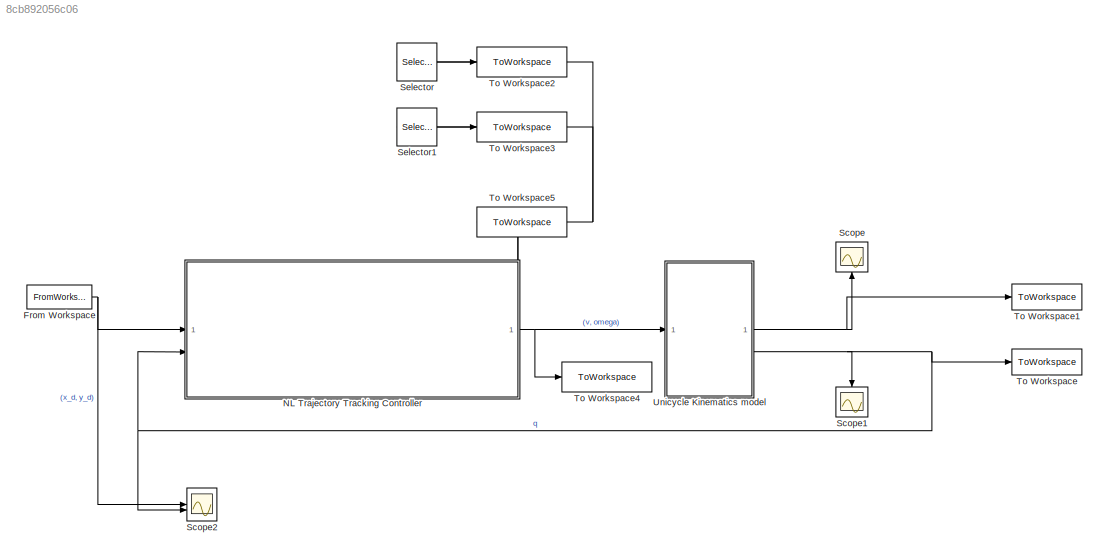
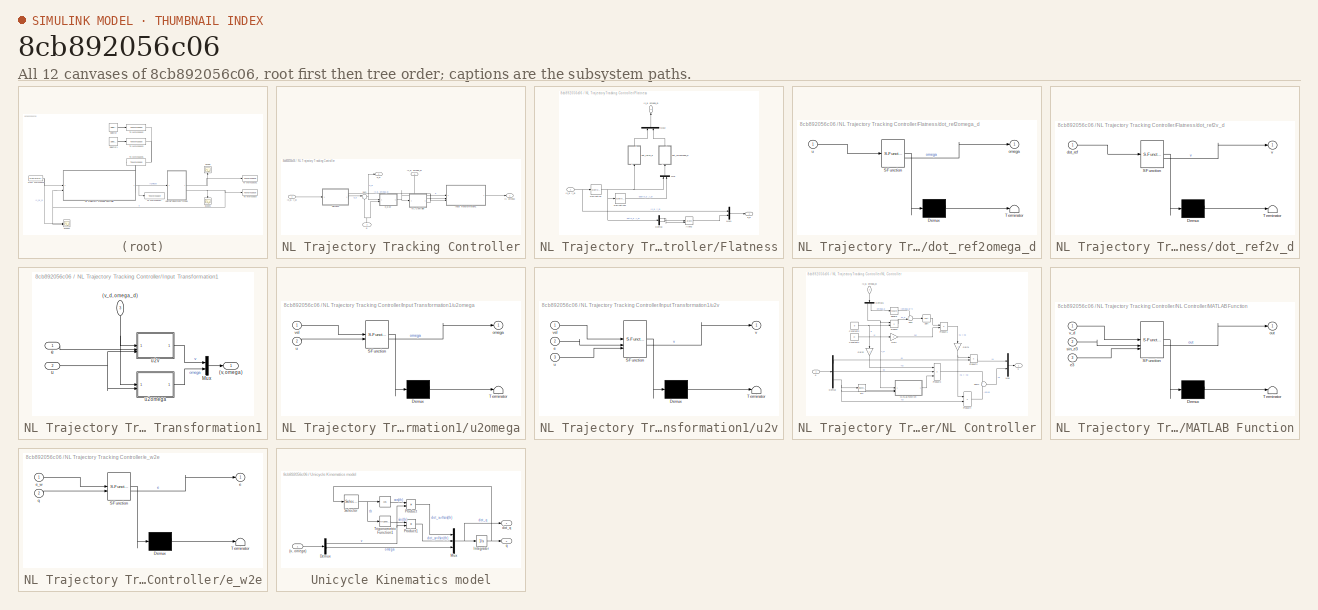
[diagram: thumbnail index - all 12 canvases of the model, root first then tree order]
MODEL slx_8cb892056c06
KIND model
CONFIG AbsTol = auto
CONFIG EnableMultiTasking = off
CONFIG FixedStep = Ts
CONFIG MaxStep = auto
CONFIG MinStep = auto
CONFIG RelTol = 1e-3
CONFIG SampleTimeConstraint = Unconstrained
CONFIG SolverName = FixedStepAuto
CONFIG StartTime = 0.0
CONFIG StopTime = 14.3996
BLOCK [FromWorkspace] From Workspace
  OutDataTypeStr = double
  SampleTime = -1
  VariableName = ref
BLOCK [SubSystem] NL Trajectory Tracking Controller
  PortSchema = {"entries":[{"content":{"sides":[{"content":{"connectorIds":["In1","In2"]},"type":"ConnectorPlacement.EquallySpacedRectSide","uuid":"cd877c46-8e15-457a-8f54-61807ea2ef45"},{"content":{"connectorIds":["Out1"],"side":"RIGHT"},"type":"ConnectorPlacement.EquallySpacedRectSide","uuid":"176f7bf5-d0a0-4212-99fa-33b58d1f7853"},{"content":{"connectorIds":["Out2","Out3"],"side":"TOP"},"type":"ConnectorPlace...<+259ch>
BLOCK [Outport] NL Trajectory Tracking Controller/(v, omega)
BLOCK [Outport] NL Trajectory Tracking Controller/(v_d, omega_d)
  Port = 3
BLOCK [Inport] NL Trajectory Tracking Controller/(x_d, y_d)
BLOCK [SubSystem] NL Trajectory Tracking Controller/Flatness
  PortSchema = {"entries":[{"content":{"sides":[{"content":{"connectorIds":["In1"]},"type":"ConnectorPlacement.EquallySpacedRectSide","uuid":"bc490c8e-5666-439b-9939-62bd84628b1f"},{"content":{"connectorIds":["Out1"],"side":"RIGHT"},"type":"ConnectorPlacement.EquallySpacedRectSide","uuid":"03a20fcc-2a82-4af2-a970-ff3426fda7d9"},{"content":{"connectorIds":["Out2"],"side":"TOP"},"type":"ConnectorPlacement.EquallyS...<+246ch>
BLOCK [Outport] NL Trajectory Tracking Controller/Flatness/(v_d, omega_d)
  NameLocation = right
  Port = 2
BLOCK [Inport] NL Trajectory Tracking Controller/Flatness/(x_d, y_d)
BLOCK [Trigonometry] NL Trajectory Tracking Controller/Flatness/Atan2
  Operator = atan2
BLOCK [Demux] NL Trajectory Tracking Controller/Flatness/Demux
  Outputs = 2
BLOCK [Derivative] NL Trajectory Tracking Controller/Flatness/Derivative
BLOCK [Derivative] NL Trajectory Tracking Controller/Flatness/Derivative1
BLOCK [Mux] NL Trajectory Tracking Controller/Flatness/Mux
  DisplayOption = bar
  Inputs = 2
  NameLocation = right
BLOCK [Mux] NL Trajectory Tracking Controller/Flatness/Mux1
  DisplayOption = bar
  Inputs = 2
BLOCK [Mux] NL Trajectory Tracking Controller/Flatness/Mux2
  DisplayOption = bar
  Inputs = 2
  NameLocation = right
BLOCK [SubSystem] NL Trajectory Tracking Controller/Flatness/dot_ref2omega_d
  ErrorFcn = Stateflow.Translate.translate
  NameLocation = right
  PermitHierarchicalResolution = ExplicitOnly
  SFBlockType = MATLAB Function
  TreatAsAtomicUnit = on
BLOCK [Demux] NL Trajectory Tracking Controller/Flatness/dot_ref2omega_d/ Demux 
  Outputs = 1
BLOCK [S-Function] NL Trajectory Tracking Controller/Flatness/dot_ref2omega_d/ SFunction 
  EnableBusSupport = off
  FunctionName = sf_sfun
  PortCounts = [1 2]
  SFcnIsStateOwnerBlock = off
  SFunctionDeploymentMode = off
  Tag = Stateflow S-Function 1
BLOCK [Terminator] NL Trajectory Tracking Controller/Flatness/dot_ref2omega_d/ Terminator 
BLOCK [Outport] NL Trajectory Tracking Controller/Flatness/dot_ref2omega_d/omega
BLOCK [Inport] NL Trajectory Tracking Controller/Flatness/dot_ref2omega_d/u
BLOCK [SubSystem] NL Trajectory Tracking Controller/Flatness/dot_ref2v_d
  ErrorFcn = Stateflow.Translate.translate
  NameLocation = right
  PermitHierarchicalResolution = ExplicitOnly
  SFBlockType = MATLAB Function
  TreatAsAtomicUnit = on
BLOCK [Demux] NL Trajectory Tracking Controller/Flatness/dot_ref2v_d/ Demux 
  Outputs = 1
BLOCK [S-Function] NL Trajectory Tracking Controller/Flatness/dot_ref2v_d/ SFunction 
  EnableBusSupport = off
  FunctionName = sf_sfun
  PortCounts = [1 2]
  SFcnIsStateOwnerBlock = off
  SFunctionDeploymentMode = off
  Tag = Stateflow S-Function 2
BLOCK [Terminator] NL Trajectory Tracking Controller/Flatness/dot_ref2v_d/ Terminator 
BLOCK [Inport] NL Trajectory Tracking Controller/Flatness/dot_ref2v_d/dot_ref
BLOCK [Outport] NL Trajectory Tracking Controller/Flatness/dot_ref2v_d/v
BLOCK [Outport] NL Trajectory Tracking Controller/Flatness/q_d
BLOCK [SubSystem] NL Trajectory Tracking Controller/Input Transformation1
  PortSchema = {"entries":[{"content":{"sides":[{"content":{"connectorIds":["In1","In2"]},"type":"ConnectorPlacement.EquallySpacedRectSide","uuid":"4cbebdc1-8913-4bb0-9524-d854c819f784"},{"content":{"connectorIds":["Out1"],"side":"RIGHT"},"type":"ConnectorPlacement.EquallySpacedRectSide","uuid":"178a2b4a-0c33-47f3-8be3-bd76dfc47961"},{"content":{"connectorIds":["In3"],"side":"TOP"},"type":"ConnectorPlacement.Equ...<+251ch>
BLOCK [Outport] NL Trajectory Tracking Controller/Input Transformation1/(v, omega)
BLOCK [Inport] NL Trajectory Tracking Controller/Input Transformation1/(v_d, omega_d)
  NameLocation = left
  Port = 3
BLOCK [Mux] NL Trajectory Tracking Controller/Input Transformation1/Mux
  DisplayOption = bar
  Inputs = 2
BLOCK [Inport] NL Trajectory Tracking Controller/Input Transformation1/e
BLOCK [Inport] NL Trajectory Tracking Controller/Input Transformation1/u
  Port = 2
BLOCK [SubSystem] NL Trajectory Tracking Controller/Input Transformation1/u2omega
  ErrorFcn = Stateflow.Translate.translate
  PermitHierarchicalResolution = ExplicitOnly
  SFBlockType = MATLAB Function
  TreatAsAtomicUnit = on
BLOCK [Demux] NL Trajectory Tracking Controller/Input Transformation1/u2omega/ Demux 
  Outputs = 1
BLOCK [S-Function] NL Trajectory Tracking Controller/Input Transformation1/u2omega/ SFunction 
  EnableBusSupport = off
  FunctionName = sf_sfun
  PortCounts = [2 2]
  SFcnIsStateOwnerBlock = off
  SFunctionDeploymentMode = off
  Tag = Stateflow S-Function 6
BLOCK [Terminator] NL Trajectory Tracking Controller/Input Transformation1/u2omega/ Terminator 
BLOCK [Outport] NL Trajectory Tracking Controller/Input Transformation1/u2omega/omega
BLOCK [Inport] NL Trajectory Tracking Controller/Input Transformation1/u2omega/u
  Port = 2
BLOCK [Inport] NL Trajectory Tracking Controller/Input Transformation1/u2omega/vel
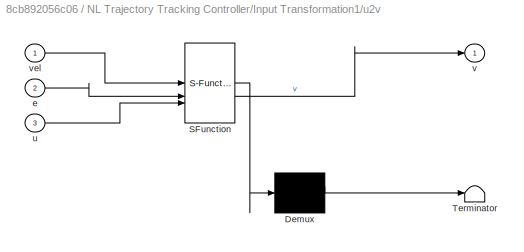
BLOCK [SubSystem] NL Trajectory Tracking Controller/Input Transformation1/u2v
  ErrorFcn = Stateflow.Translate.translate
  PermitHierarchicalResolution = ExplicitOnly
  SFBlockType = MATLAB Function
  TreatAsAtomicUnit = on
BLOCK [Demux] NL Trajectory Tracking Controller/Input Transformation1/u2v/ Demux 
  Outputs = 1
BLOCK [S-Function] NL Trajectory Tracking Controller/Input Transformation1/u2v/ SFunction 
  EnableBusSupport = off
  FunctionName = sf_sfun
  PortCounts = [3 2]
  SFcnIsStateOwnerBlock = off
  SFunctionDeploymentMode = off
  Tag = Stateflow S-Function 7
BLOCK [Terminator] NL Trajectory Tracking Controller/Input Transformation1/u2v/ Terminator 
BLOCK [Inport] NL Trajectory Tracking Controller/Input Transformation1/u2v/e
  Port = 2
BLOCK [Inport] NL Trajectory Tracking Controller/Input Transformation1/u2v/u
  Port = 3
BLOCK [Outport] NL Trajectory Tracking Controller/Input Transformation1/u2v/v
BLOCK [Inport] NL Trajectory Tracking Controller/Input Transformation1/u2v/vel
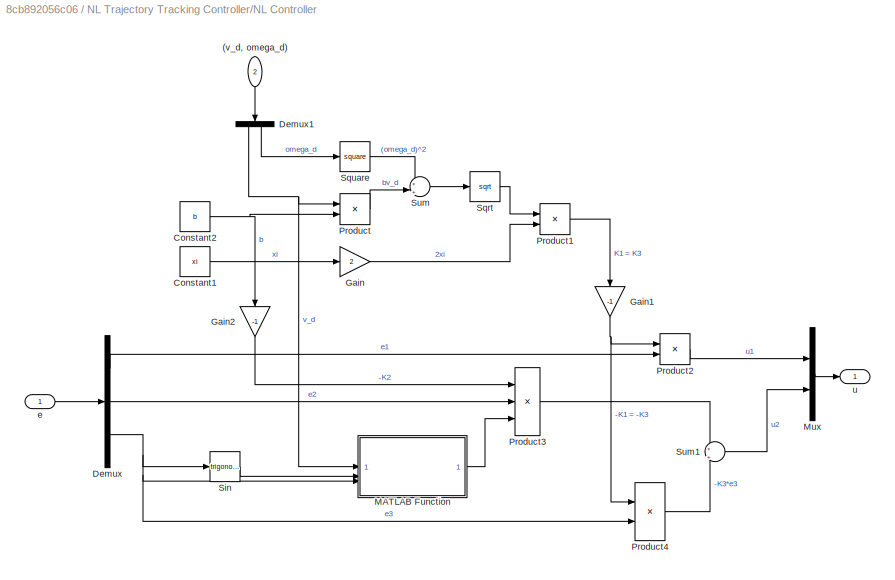
BLOCK [SubSystem] NL Trajectory Tracking Controller/NL Controller
  PortSchema = {"entries":[{"content":{"sides":[{"content":{"connectorIds":["In1"]},"type":"ConnectorPlacement.EquallySpacedRectSide","uuid":"111a75b0-1720-417b-bb3b-4eef3b94ce3e"},{"content":{"connectorIds":["Out1"],"side":"RIGHT"},"type":"ConnectorPlacement.EquallySpacedRectSide","uuid":"fd08faf2-16f9-4b1a-8555-2743d2eb322e"},{"content":{"connectorIds":["In2"],"side":"TOP"},"type":"ConnectorPlacement.EquallySp...<+245ch>
BLOCK [Inport] NL Trajectory Tracking Controller/NL Controller/(v_d, omega_d)
  NameLocation = left
  Port = 2
BLOCK [Constant] NL Trajectory Tracking Controller/NL Controller/Constant1
  Value = xi
BLOCK [Constant] NL Trajectory Tracking Controller/NL Controller/Constant2
  Value = b
BLOCK [Demux] NL Trajectory Tracking Controller/NL Controller/Demux
  Outputs = 3
BLOCK [Demux] NL Trajectory Tracking Controller/NL Controller/Demux1
  NameLocation = left
  Outputs = 2
BLOCK [Gain] NL Trajectory Tracking Controller/NL Controller/Gain
  Gain = 2
BLOCK [Gain] NL Trajectory Tracking Controller/NL Controller/Gain1
  Gain = -1
  NameLocation = left
BLOCK [Gain] NL Trajectory Tracking Controller/NL Controller/Gain2
  Gain = -1
  NameLocation = left
BLOCK [SubSystem] NL Trajectory Tracking Controller/NL Controller/MATLAB Function
  ErrorFcn = Stateflow.Translate.translate
  PermitHierarchicalResolution = ExplicitOnly
  SFBlockType = MATLAB Function
  TreatAsAtomicUnit = on
BLOCK [Demux] NL Trajectory Tracking Controller/NL Controller/MATLAB Function/ Demux 
  Outputs = 1
BLOCK [S-Function] NL Trajectory Tracking Controller/NL Controller/MATLAB Function/ SFunction 
  EnableBusSupport = off
  FunctionName = sf_sfun
  PortCounts = [3 2]
  SFcnIsStateOwnerBlock = off
  SFunctionDeploymentMode = off
  Tag = Stateflow S-Function 11
BLOCK [Terminator] NL Trajectory Tracking Controller/NL Controller/MATLAB Function/ Terminator 
BLOCK [Inport] NL Trajectory Tracking Controller/NL Controller/MATLAB Function/e3
  Port = 3
BLOCK [Outport] NL Trajectory Tracking Controller/NL Controller/MATLAB Function/out
BLOCK [Inport] NL Trajectory Tracking Controller/NL Controller/MATLAB Function/sin_e3
  Port = 2
BLOCK [Inport] NL Trajectory Tracking Controller/NL Controller/MATLAB Function/v_d
BLOCK [Mux] NL Trajectory Tracking Controller/NL Controller/Mux
  DisplayOption = bar
  Inputs = 2
BLOCK [Product] NL Trajectory Tracking Controller/NL Controller/Product
BLOCK [Product] NL Trajectory Tracking Controller/NL Controller/Product1
BLOCK [Product] NL Trajectory Tracking Controller/NL Controller/Product2
BLOCK [Product] NL Trajectory Tracking Controller/NL Controller/Product3
  Inputs = 3
BLOCK [Product] NL Trajectory Tracking Controller/NL Controller/Product4
BLOCK [Trigonometry] NL Trajectory Tracking Controller/NL Controller/Sin
BLOCK [Sqrt] NL Trajectory Tracking Controller/NL Controller/Sqrt
BLOCK [Math] NL Trajectory Tracking Controller/NL Controller/Square
  Operator = square
BLOCK [Sum] NL Trajectory Tracking Controller/NL Controller/Sum
  Inputs = +|+
BLOCK [Sum] NL Trajectory Tracking Controller/NL Controller/Sum1
  Inputs = +|+
BLOCK [Inport] NL Trajectory Tracking Controller/NL Controller/e
BLOCK [Outport] NL Trajectory Tracking Controller/NL Controller/u
BLOCK [Sum] NL Trajectory Tracking Controller/Sum
  Inputs = |+-
BLOCK [Outport] NL Trajectory Tracking Controller/e_w
  Port = 2
BLOCK [SubSystem] NL Trajectory Tracking Controller/e_w2e
  ErrorFcn = Stateflow.Translate.translate
  PermitHierarchicalResolution = ExplicitOnly
  SFBlockType = MATLAB Function
  TreatAsAtomicUnit = on
BLOCK [Demux] NL Trajectory Tracking Controller/e_w2e/ Demux 
  Outputs = 1
BLOCK [S-Function] NL Trajectory Tracking Controller/e_w2e/ SFunction 
  EnableBusSupport = off
  FunctionName = sf_sfun
  PortCounts = [2 2]
  SFcnIsStateOwnerBlock = off
  SFunctionDeploymentMode = off
  Tag = Stateflow S-Function 3
BLOCK [Terminator] NL Trajectory Tracking Controller/e_w2e/ Terminator 
BLOCK [Outport] NL Trajectory Tracking Controller/e_w2e/e
BLOCK [Inport] NL Trajectory Tracking Controller/e_w2e/e_w
BLOCK [Inport] NL Trajectory Tracking Controller/e_w2e/q
  Port = 2
BLOCK [Inport] NL Trajectory Tracking Controller/q
  Port = 2
BLOCK [Scope] Scope
  ActiveDisplayYMaximum = 630.9359
  ActiveDisplayYMinimum = -1203.295
  DataLoggingVariableName = ScopeData4
  Floating = off
  GraphicalSettings = {"GraphicalSettings":{"LegacySettings":true,"Style":{"AxesScalingProperties":{"AlignXAxis":"Center","AlignYAxis":"Center","AutoScaleXAxisLimits":true,"AxesScaling":"Manual","AxesScalingNumUpdates":10,"ScaleAxesLimitsAtStop":false,"XAxisDataRange":100,"YAxisDataRange":80},"Style":{"AxesColor":"[0.0705882352941176 0.0705882352941176 0.0705882352941176]","BackgroundColor":"[0.129411764705882 0.129411...<+803ch>
  LayoutDimensionsString = [1 1]
  MultipleDisplayCache = [{"MaxYLimMag":10,"MaxYLimReal":630.9359,"MinYLimMag":0,"MinYLimReal":-1203.295,"PlotAsMagnitudePhase":false,"ShowGrid":true,"ShowLegend":false,"Title":"%<SignalLabel>","YLabel":""}]
  NameLocation = right
  NumInputPorts = 1
  WasSavedAsWebScope = on
  WindowPosition = [47 38 1874 1011]
BLOCK [Scope] Scope1
  ActiveDisplayYMaximum = 317.52399250471404
  ActiveDisplayYMinimum = -65.207642092288552
  Floating = off
  GraphicalSettings = {"Style":{"BackgroundColor":[0.12156862745098039,0.12156862745098039,0.12156862745098039],"AxesColor":[0.06666666666666667,0.06666666666666667,0.06666666666666667],"LabelsColor":[0.8509803921568627,0.8509803921568627,0.8509803921568627],"PreserveColors":false,"Visible":[true,true,true],"LineStyle":["-","-","-"],"LineWidth":[1.5,1.5,1.5],"BarWidth":[0.9,0.9,0.9],"LineColor":[[1,0.9098039215686274,0...<+2325ch>
  LayoutDimensionsString = [1 1]
  MultipleDisplayCache = [{"MaxYLimMag":1518.8667,"MaxYLimReal":317.52399250471404,"MinYLimMag":0,"MinYLimReal":-65.207642092288552,"PlotAsMagnitudePhase":false,"ShowGrid":true,"ShowLegend":true,"Title":"%<SignalLabel>","YLabel":""}]
  NameLocation = left
  NumInputPorts = 1
  ScopeFrameLocation = window
  ShowLegend = on
  WasSavedAsWebScope = on
  WindowPosition = [1.000000,49.000000,1536.000000,793.000000,]
BLOCK [Scope] Scope2
  ActiveDisplayYMaximum = 287.08732573187319
  ActiveDisplayYMinimum = -33.7891134683469
  DataLoggingVariableName = ScopeData2
  DisplayFullPath = on
  Floating = off
  GraphicalSettings = {"Style":{"BackgroundColor":[0.12549019607843137,0.12549019607843137,0.12549019607843137],"AxesColor":[0.06666666666666667,0.06666666666666667,0.06666666666666667],"LabelsColor":[0.8509803921568627,0.8509803921568627,0.8509803921568627],"PreserveColors":false,"Visible":[true,true,true,true,true],"LineStyle":["-","-","-","-","-"],"LineWidth":[1.5,1.5,1.5,1.5,1.5],"BarWidth":[0.9,0.9,0.9,0.9,0.9],"L...<+2532ch>
  LayoutDimensionsString = [1 1]
  MultipleDisplayCache = [{"MaxYLimMag":287.08732573187319,"MaxYLimReal":287.08732573187319,"MinYLimMag":0,"MinYLimReal":-33.7891134683469,"PlotAsMagnitudePhase":false,"ShowGrid":true,"ShowLegend":true,"Title":"%<SignalLabel>","YLabel":""}]
  NumInputPorts = 2
  OpenAtSimulationStart = on
  ScopeFrameLocation = window
  ShowLegend = on
  WasSavedAsWebScope = on
  WindowPosition = [1.000000,49.000000,1536.000000,793.000000,]
BLOCK [Selector] Selector
  IndexOptions = Index vector (dialog)
  Indices = [1]
  InputPortWidth = 3
  OutputSizes = 1
BLOCK [Selector] Selector1
  IndexOptions = Index vector (dialog)
  Indices = [2]
  InputPortWidth = 3
  OutputSizes = 1
BLOCK [ToWorkspace] To Workspace
  FixptAsFi = on
  MaxDataPoints = inf
  SampleTime = -1
  SaveFormat = Timeseries
  VariableName = q
BLOCK [ToWorkspace] To Workspace1
  FixptAsFi = on
  MaxDataPoints = inf
  SampleTime = -1
  SaveFormat = Timeseries
  VariableName = qdot
BLOCK [ToWorkspace] To Workspace2
  FixptAsFi = on
  MaxDataPoints = inf
  SampleTime = -1
  SaveFormat = Timeseries
  VariableName = e_x
BLOCK [ToWorkspace] To Workspace3
  FixptAsFi = on
  MaxDataPoints = inf
  SampleTime = -1
  SaveFormat = Timeseries
  VariableName = e_y
BLOCK [ToWorkspace] To Workspace4
  FixptAsFi = on
  MaxDataPoints = inf
  SampleTime = -1
  SaveFormat = Timeseries
  VariableName = vw
BLOCK [ToWorkspace] To Workspace5
  FixptAsFi = on
  MaxDataPoints = inf
  SampleTime = -1
  SaveFormat = Timeseries
  VariableName = vd_wd
BLOCK [SubSystem] Unicycle Kinematics model
BLOCK [Trigonometry] Unicycle Kinematics model/ 
  Operator = cos
BLOCK [Inport] Unicycle Kinematics model/(v, omega)
BLOCK [Demux] Unicycle Kinematics model/Demux
  Outputs = 2
BLOCK [Integrator] Unicycle Kinematics model/Integrator
  InitialCondition = [x0; y0; theta0]
BLOCK [Mux] Unicycle Kinematics model/Mux
  DisplayOption = bar
  Inputs = 3
BLOCK [Product] Unicycle Kinematics model/Product
BLOCK [Product] Unicycle Kinematics model/Product1
BLOCK [Selector] Unicycle Kinematics model/Selector
  IndexOptions = Index vector (dialog)
  Indices = [3]
  InputPortWidth = 3
  OutputSizes = 1
BLOCK [Trigonometry] Unicycle Kinematics model/Trigonometric Function1
BLOCK [Outport] Unicycle Kinematics model/dot_q
BLOCK [Outport] Unicycle Kinematics model/q
  Port = 2
NET From Workspace:1 -> NL Trajectory Tracking Controller:1, Scope2:1
LINE NL Trajectory Tracking Controller/(x_d, y_d):1 -> NL Trajectory Tracking Controller/Flatness:1
NET NL Trajectory Tracking Controller/Flatness/(x_d, y_d):1 -> NL Trajectory Tracking Controller/Flatness/Derivative:1, NL Trajectory Tracking Controller/Flatness/Mux1:1
LINE NL Trajectory Tracking Controller/Flatness/Atan2:1 -> NL Trajectory Tracking Controller/Flatness/Mux1:2
LINE NL Trajectory Tracking Controller/Flatness/Demux:1 -> NL Trajectory Tracking Controller/Flatness/Atan2:2
LINE NL Trajectory Tracking Controller/Flatness/Demux:2 -> NL Trajectory Tracking Controller/Flatness/Atan2:1
LINE NL Trajectory Tracking Controller/Flatness/Derivative1:1 -> NL Trajectory Tracking Controller/Flatness/Mux:2
NET NL Trajectory Tracking Controller/Flatness/Derivative:1 -> NL Trajectory Tracking Controller/Flatness/Demux:1, NL Trajectory Tracking Controller/Flatness/Derivative1:1, NL Trajectory Tracking Controller/Flatness/Mux:1, NL Trajectory Tracking Controller/Flatness/dot_ref2v_d:1
LINE NL Trajectory Tracking Controller/Flatness/Mux1:1 -> NL Trajectory Tracking Controller/Flatness/q_d:1
LINE NL Trajectory Tracking Controller/Flatness/Mux2:1 -> NL Trajectory Tracking Controller/Flatness/(v_d, omega_d):1
LINE NL Trajectory Tracking Controller/Flatness/Mux:1 -> NL Trajectory Tracking Controller/Flatness/dot_ref2omega_d:1
LINE NL Trajectory Tracking Controller/Flatness/dot_ref2omega_d:1 -> NL Trajectory Tracking Controller/Flatness/Mux2:2
LINE NL Trajectory Tracking Controller/Flatness/dot_ref2v_d:1 -> NL Trajectory Tracking Controller/Flatness/Mux2:1
LINE NL Trajectory Tracking Controller/Flatness:1 -> NL Trajectory Tracking Controller/Sum:1
NET NL Trajectory Tracking Controller/Flatness:2 -> NL Trajectory Tracking Controller/(v_d, omega_d):1, NL Trajectory Tracking Controller/Input Transformation1:3, NL Trajectory Tracking Controller/NL Controller:2
NET NL Trajectory Tracking Controller/Input Transformation1/(v_d, omega_d):1 -> NL Trajectory Tracking Controller/Input Transformation1/u2omega:1, NL Trajectory Tracking Controller/Input Transformation1/u2v:1
LINE NL Trajectory Tracking Controller/Input Transformation1/Mux:1 -> NL Trajectory Tracking Controller/Input Transformation1/(v, omega):1
LINE NL Trajectory Tracking Controller/Input Transformation1/e:1 -> NL Trajectory Tracking Controller/Input Transformation1/u2v:2
LINE NL Trajectory Tracking Controller/Input Transformation1/u2omega:1 -> NL Trajectory Tracking Controller/Input Transformation1/Mux:2
LINE NL Trajectory Tracking Controller/Input Transformation1/u2v:1 -> NL Trajectory Tracking Controller/Input Transformation1/Mux:1
NET NL Trajectory Tracking Controller/Input Transformation1/u:1 -> NL Trajectory Tracking Controller/Input Transformation1/u2omega:2, NL Trajectory Tracking Controller/Input Transformation1/u2v:3
LINE NL Trajectory Tracking Controller/Input Transformation1:1 -> NL Trajectory Tracking Controller/(v, omega):1
LINE NL Trajectory Tracking Controller/NL Controller/(v_d, omega_d):1 -> NL Trajectory Tracking Controller/NL Controller/Demux1:1
LINE NL Trajectory Tracking Controller/NL Controller/Constant1:1 -> NL Trajectory Tracking Controller/NL Controller/Gain:1
NET NL Trajectory Tracking Controller/NL Controller/Constant2:1 -> NL Trajectory Tracking Controller/NL Controller/Gain2:1, NL Trajectory Tracking Controller/NL Controller/Product:2
NET NL Trajectory Tracking Controller/NL Controller/Demux1:1 -> NL Trajectory Tracking Controller/NL Controller/MATLAB Function:1, NL Trajectory Tracking Controller/NL Controller/Product:1
LINE NL Trajectory Tracking Controller/NL Controller/Demux1:2 -> NL Trajectory Tracking Controller/NL Controller/Square:1
LINE NL Trajectory Tracking Controller/NL Controller/Demux:1 -> NL Trajectory Tracking Controller/NL Controller/Product2:2
LINE NL Trajectory Tracking Controller/NL Controller/Demux:2 -> NL Trajectory Tracking Controller/NL Controller/Product3:2
NET NL Trajectory Tracking Controller/NL Controller/Demux:3 -> NL Trajectory Tracking Controller/NL Controller/MATLAB Function:3, NL Trajectory Tracking Controller/NL Controller/Product4:2, NL Trajectory Tracking Controller/NL Controller/Sin:1
NET NL Trajectory Tracking Controller/NL Controller/Gain1:1 -> NL Trajectory Tracking Controller/NL Controller/Product2:1, NL Trajectory Tracking Controller/NL Controller/Product4:1
LINE NL Trajectory Tracking Controller/NL Controller/Gain2:1 -> NL Trajectory Tracking Controller/NL Controller/Product3:1
LINE NL Trajectory Tracking Controller/NL Controller/Gain:1 -> NL Trajectory Tracking Controller/NL Controller/Product1:2
LINE NL Trajectory Tracking Controller/NL Controller/MATLAB Function:1 -> NL Trajectory Tracking Controller/NL Controller/Product3:3
LINE NL Trajectory Tracking Controller/NL Controller/Mux:1 -> NL Trajectory Tracking Controller/NL Controller/u:1
LINE NL Trajectory Tracking Controller/NL Controller/Product1:1 -> NL Trajectory Tracking Controller/NL Controller/Gain1:1
LINE NL Trajectory Tracking Controller/NL Controller/Product2:1 -> NL Trajectory Tracking Controller/NL Controller/Mux:1
LINE NL Trajectory Tracking Controller/NL Controller/Product3:1 -> NL Trajectory Tracking Controller/NL Controller/Sum1:1
LINE NL Trajectory Tracking Controller/NL Controller/Product4:1 -> NL Trajectory Tracking Controller/NL Controller/Sum1:2
LINE NL Trajectory Tracking Controller/NL Controller/Product:1 -> NL Trajectory Tracking Controller/NL Controller/Sum:2
LINE NL Trajectory Tracking Controller/NL Controller/Sin:1 -> NL Trajectory Tracking Controller/NL Controller/MATLAB Function:2
LINE NL Trajectory Tracking Controller/NL Controller/Sqrt:1 -> NL Trajectory Tracking Controller/NL Controller/Product1:1
LINE NL Trajectory Tracking Controller/NL Controller/Square:1 -> NL Trajectory Tracking Controller/NL Controller/Sum:1
LINE NL Trajectory Tracking Controller/NL Controller/Sum1:1 -> NL Trajectory Tracking Controller/NL Controller/Mux:2
LINE NL Trajectory Tracking Controller/NL Controller/Sum:1 -> NL Trajectory Tracking Controller/NL Controller/Sqrt:1
LINE NL Trajectory Tracking Controller/NL Controller/e:1 -> NL Trajectory Tracking Controller/NL Controller/Demux:1
LINE NL Trajectory Tracking Controller/NL Controller:1 -> NL Trajectory Tracking Controller/Input Transformation1:2
NET NL Trajectory Tracking Controller/Sum:1 -> NL Trajectory Tracking Controller/e_w2e:1, NL Trajectory Tracking Controller/e_w:1
NET NL Trajectory Tracking Controller/e_w2e:1 -> NL Trajectory Tracking Controller/Input Transformation1:1, NL Trajectory Tracking Controller/NL Controller:1
NET NL Trajectory Tracking Controller/q:1 -> NL Trajectory Tracking Controller/Sum:2, NL Trajectory Tracking Controller/e_w2e:2
NET NL Trajectory Tracking Controller:1 -> To Workspace4:1, Unicycle Kinematics model:1
NET NL Trajectory Tracking Controller:2 -> Selector1:1, Selector:1
LINE NL Trajectory Tracking Controller:3 -> To Workspace5:1
LINE Selector1:1 -> To Workspace3:1
LINE Selector:1 -> To Workspace2:1
LINE Unicycle Kinematics model/ :1 -> Unicycle Kinematics model/Product:1
LINE Unicycle Kinematics model/(v, omega):1 -> Unicycle Kinematics model/Demux:1
NET Unicycle Kinematics model/Demux:1 -> Unicycle Kinematics model/Product1:2, Unicycle Kinematics model/Product:2
LINE Unicycle Kinematics model/Demux:2 -> Unicycle Kinematics model/Mux:3
NET Unicycle Kinematics model/Integrator:1 -> Unicycle Kinematics model/Selector:1, Unicycle Kinematics model/q:1
NET Unicycle Kinematics model/Mux:1 -> Unicycle Kinematics model/Integrator:1, Unicycle Kinematics model/dot_q:1
LINE Unicycle Kinematics model/Product1:1 -> Unicycle Kinematics model/Mux:2
LINE Unicycle Kinematics model/Product:1 -> Unicycle Kinematics model/Mux:1
NET Unicycle Kinematics model/Selector:1 -> Unicycle Kinematics model/ :1, Unicycle Kinematics model/Trigonometric Function1:1
LINE Unicycle Kinematics model/Trigonometric Function1:1 -> Unicycle Kinematics model/Product1:1
NET Unicycle Kinematics model:1 -> Scope:1, To Workspace1:1
NET Unicycle Kinematics model:2 -> NL Trajectory Tracking Controller:2, Scope1:1, Scope2:2, To Workspace:1
note: NET lines group one-source signal fan-out (src -> all destinations, sorted); 1:1 wires keep LINE
CHART NL Trajectory Tracking Controller/Flatness/dot_ref2v_d states=1 transitions=1
  STATE_LABEL 'eML_blk_kernel()'
  STATE_LABEL 'SCRIPT:\nfunction v = fcn(dot_ref)\n    dot_x = dot_ref(1);\n    dot_y = dot_ref(2);\n\n    v = sqrt(dot_x^2 + dot_y^2);\n\n    v_min = 1e-6;\n    if ~isfinite(v) || v < v_min\n        v = v_min;\n    end\nend\n'
CHART NL Trajectory Tracking Controller/e_w2e states=1 transitions=1
  STATE_LABEL 'eML_blk_kernel()'
  STATE_LABEL 'SCRIPT:\nfunction e = fcn(e_w, q)\n    theta = q(3);\n\n    R = [cos(theta) sin(theta) 0; \n        -sin(theta) cos(theta) 0;\n             0          0      1];\n\n    e = R*e_w; \n    e(3) = atan2(sin(e(3)), cos(e(3))); \n\nend\n'
CHART NL Trajectory Tracking Controller/Input Transformation1/u2omega states=1 transitions=1
  STATE_LABEL 'eML_blk_kernel()'
  STATE_LABEL 'SCRIPT:\nfunction omega = fcn(vel,u)\n    omega_d = vel(2);\n\n    omega = omega_d-u(2);\n\n'
CHART NL Trajectory Tracking Controller/Input Transformation1/u2v states=1 transitions=1
  STATE_LABEL 'eML_blk_kernel()'
  STATE_LABEL 'SCRIPT:\nfunction v = fcn(vel, e, u)\n v_d = vel(1);\n\n v = v_d*cos(e(3))-u(1);\n'
CHART NL Trajectory Tracking Controller/NL Controller/MATLAB Function states=1 transitions=1
  STATE_LABEL 'eML_blk_kernel()'
  STATE_LABEL 'SCRIPT:\nfunction out = sinc_term(v_d, sin_e3, e3)\n\n    if abs(e3) < 1e-5\n        out = v_d * 1; \n    else\n        out = v_d * (sin_e3 / e3);\n    end\nend'
CHART NL Trajectory Tracking Controller/Flatness/dot_ref2omega_d states=1 transitions=1
  STATE_LABEL 'eML_blk_kernel()'
  STATE_LABEL 'SCRIPT:\nfunction omega = fcn(u)\n    dot_x  = u(1);\n    dot_y  = u(2);\n    ddot_x = u(3);\n    ddot_y = u(4);\n\n    den = dot_x^2 + dot_y^2;\n\n    % Guard against singularity / non-finite inputs\n    eps_den = 1e-6;\n    if ~isfinite(den) || den < eps_den\n        omega = 0;             % safe default at standstill\n        return;\n    end\n\n    num = dot_x*ddot_y - dot_y*ddot_x;\n\n    if ~isfinite(num)\n   ...<+253ch>'
CHART  states=0 transitions=0
CHART  states=0 transitions=0
CHART  states=0 transitions=0
CHART  states=0 transitions=0
CHART  states=0 transitions=0
CHART  states=0 transitions=0
